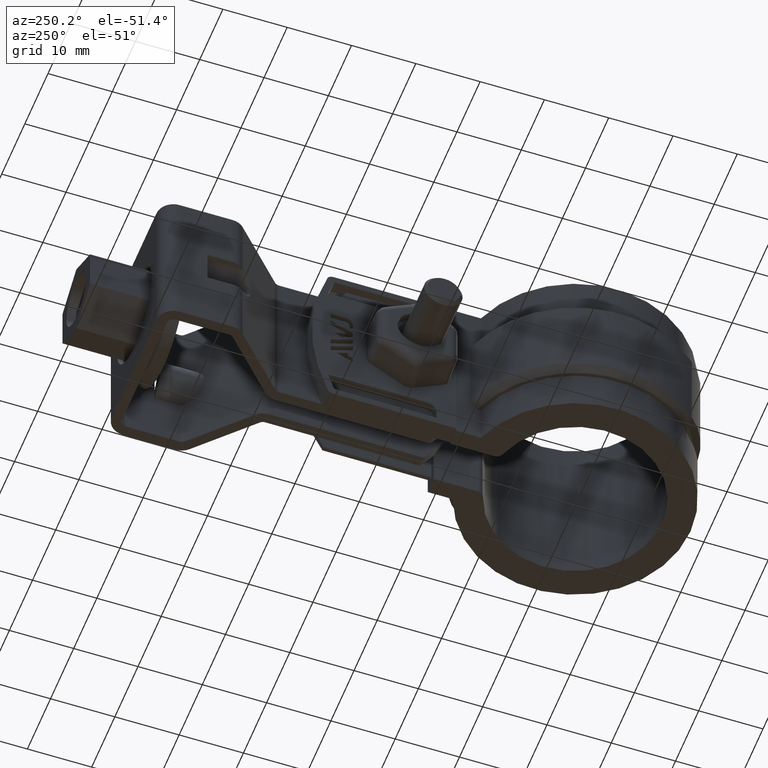
[diagram: clean part render]
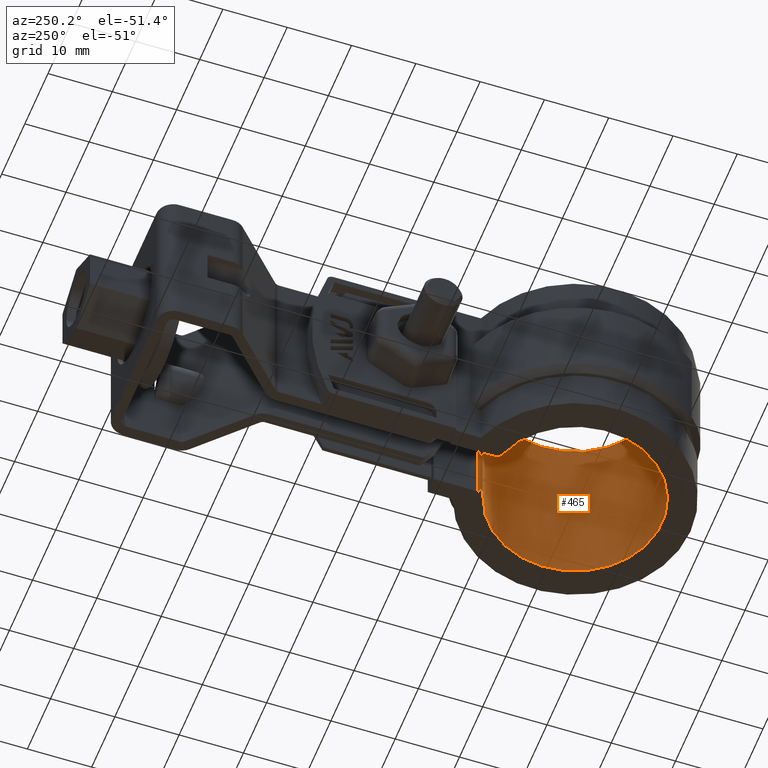
[diagram: same view with one face highlighted and labeled with its STEP entity id]
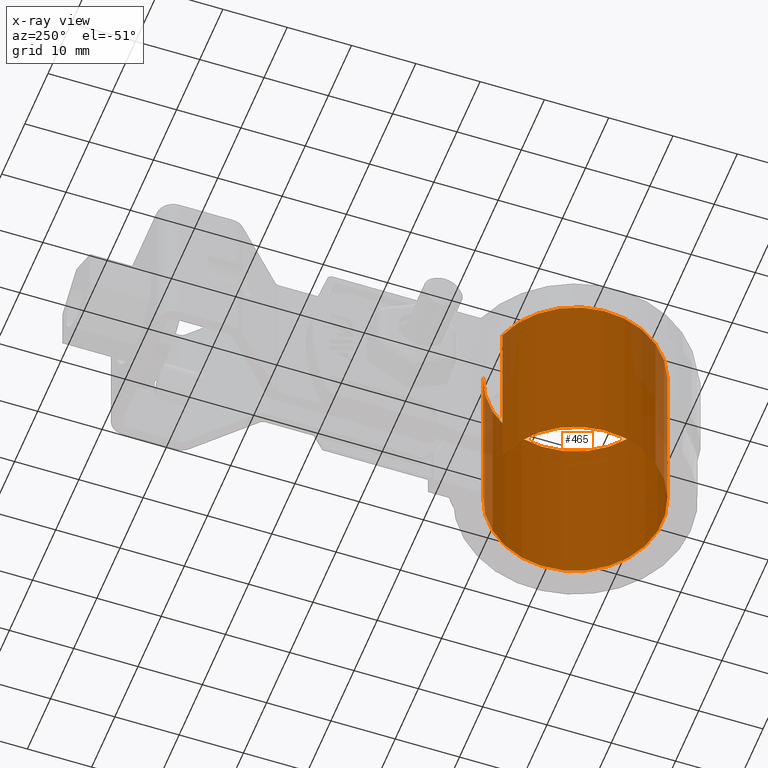
[diagram: x-ray of the same camera — body ghosted, the highlighted face saturated]
A machine part, auxiliary view. The second image highlights one B-rep face of the part: STEP entity #465.
The next image is the same camera in x-ray: the body ghosted, the highlighted face saturated — about 9% of this face is hidden behind the body in this view.
In plain terms, the highlighted cylindrical surface (partial cylindrical patch) has radius 13.5 mm, axis along (0, 0, -1).
Its self-contained STEP definition (entity closure, byte-faithful):
#465 = ADVANCED_FACE( '', ( #901 ), #902, .F. );
#901 = FACE_OUTER_BOUND( '', #1934, .T. );
#902 = CYLINDRICAL_SURFACE( '', #1935, 13.5000000000000 );
#1934 = EDGE_LOOP( '', ( #4130, #4131, #4132, #4133 ) );
#1935 = AXIS2_PLACEMENT_3D( '', #4134, #4135, #4136 );
#4130 = ORIENTED_EDGE( '', *, *, #6298, .F. );
#4131 = ORIENTED_EDGE( '', *, *, #6306, .T. );
#4132 = ORIENTED_EDGE( '', *, *, #6290, .T. );
#4133 = ORIENTED_EDGE( '', *, *, #6307, .T. );
#4134 = CARTESIAN_POINT( '', ( 0.000000000000000, 0.000000000000000, -64.1166745514317 ) );
#4135 = DIRECTION( '', ( 0.000000000000000, 0.000000000000000, -1.00000000000000 ) );
#4136 = DIRECTION( '', ( -1.00000000000000, 0.000000000000000, 0.000000000000000 ) );
#6290 = EDGE_CURVE( '', #7421, #7419, #7422, .F. );
#6298 = EDGE_CURVE( '', #7432, #7434, #7435, .F. );
#6306 = EDGE_CURVE( '', #7432, #7421, #7443, .T. );
#6307 = EDGE_CURVE( '', #7419, #7434, #7444, .F. );
#7419 = VERTEX_POINT( '', #10426 );
#7421 = VERTEX_POINT( '', #10428 );
#7422 = CIRCLE( '', #10429, 13.5000000000000 );
#7432 = VERTEX_POINT( '', #10444 );
#7434 = VERTEX_POINT( '', #10446 );
#7435 = CIRCLE( '', #10447, 13.5000000000000 );
#7443 = LINE( '', #10465, #10466 );
#7444 = LINE( '', #10467, #10468 );
#10426 = CARTESIAN_POINT( '', ( 4.18965517241380, 12.8334247002219, 1.50000000000000 ) );
#10428 = CARTESIAN_POINT( '', ( -4.18965517241379, 12.8334247002219, 1.50000000000000 ) );
#10429 = AXIS2_PLACEMENT_3D( '', #12327, #12328, #12329 );
#10444 = CARTESIAN_POINT( '', ( -4.18965517241379, 12.8334247002219, -26.5000000000000 ) );
#10446 = CARTESIAN_POINT( '', ( 4.18965517241380, 12.8334247002219, -26.5000000000000 ) );
#10447 = AXIS2_PLACEMENT_3D( '', #12341, #12342, #12343 );
#10465 = CARTESIAN_POINT( '', ( -4.18965517241379, 12.8334247002219, -64.1166745514317 ) );
#10466 = VECTOR( '', #12351, 1000.00000000000 );
#10467 = CARTESIAN_POINT( '', ( 4.18965517241380, 12.8334247002219, -64.1166745514317 ) );
#10468 = VECTOR( '', #12352, 1000.00000000000 );
#12327 = CARTESIAN_POINT( '', ( 0.000000000000000, 0.000000000000000, 1.50000000000000 ) );
#12328 = DIRECTION( '', ( 0.000000000000000, 0.000000000000000, -1.00000000000000 ) );
#12329 = DIRECTION( '', ( -1.00000000000000, 0.000000000000000, 0.000000000000000 ) );
#12341 = CARTESIAN_POINT( '', ( 0.000000000000000, 0.000000000000000, -26.5000000000000 ) );
#12342 = DIRECTION( '', ( 0.000000000000000, 0.000000000000000, -1.00000000000000 ) );
#12343 = DIRECTION( '', ( -1.00000000000000, 0.000000000000000, 0.000000000000000 ) );
#12351 = DIRECTION( '', ( 0.000000000000000, 0.000000000000000, 1.00000000000000 ) );
#12352 = DIRECTION( '', ( 0.000000000000000, 0.000000000000000, 1.00000000000000 ) );